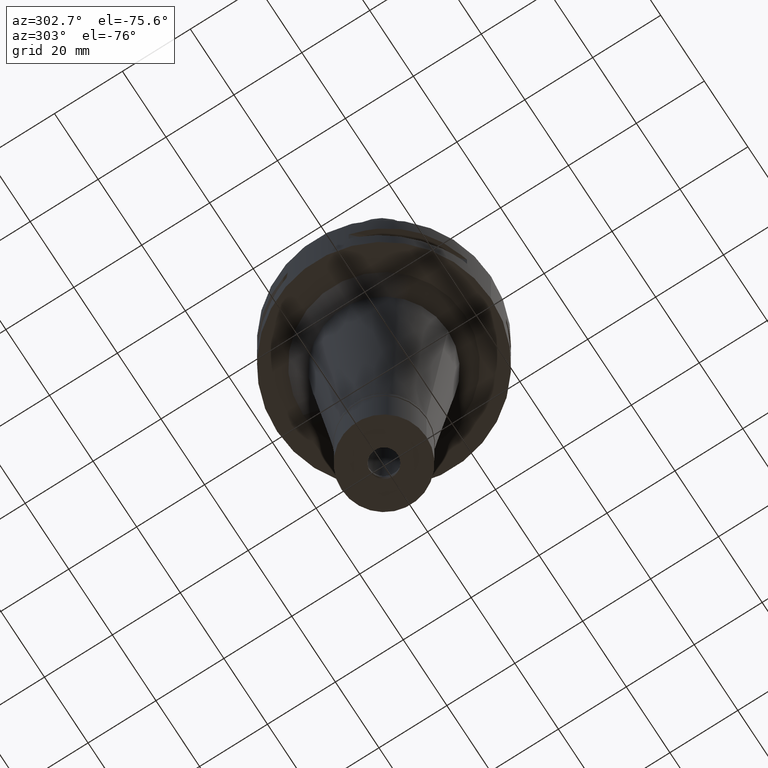
[diagram: clean part render]
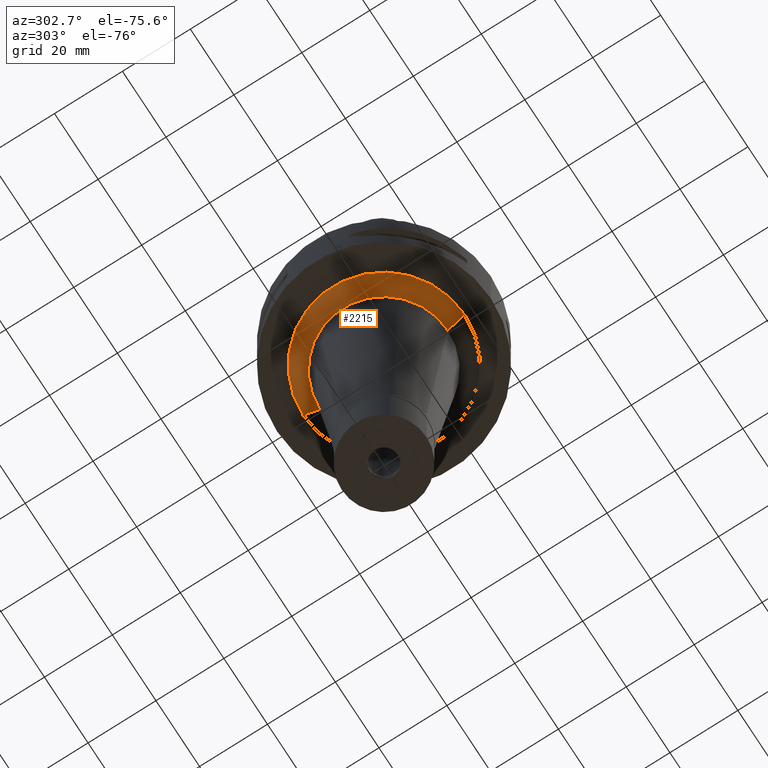
[diagram: same view with one face highlighted and labeled with its STEP entity id]
A machine part, auxiliary view. The second image highlights one B-rep face of the part: STEP entity #2215.
In plain terms, the highlighted conical surface has half-angle 45 deg.
Its self-contained STEP definition (entity closure, byte-faithful):
#77 = CARTESIAN_POINT ( 'NONE',  ( 0.0000000000000000000, 23.77293717480999646, -22.00000000000000000 ) ) ;
#346 = VERTEX_POINT ( 'NONE', #3609 ) ;
#811 = DIRECTION ( 'NONE',  ( 0.0000000000000000000, -1.000000000000000000, 0.0000000000000000000 ) ) ;
#815 = DIRECTION ( 'NONE',  ( 0.0000000000000000000, 0.0000000000000000000, 1.000000000000000000 ) ) ;
#875 = CIRCLE ( 'NONE', #1797, 23.77293717480999646 ) ;
#1042 = CIRCLE ( 'NONE', #3951, 18.77293717481000002 ) ;
#1156 = ORIENTED_EDGE ( 'NONE', *, *, #3165, .F. ) ;
#1339 = VERTEX_POINT ( 'NONE', #4884 ) ;
#1564 = VECTOR ( 'NONE', #4009, 1000.000000000000000 ) ;
#1604 = DIRECTION ( 'NONE',  ( 0.0000000000000000000, 0.0000000000000000000, -1.000000000000000000 ) ) ;
#1797 = AXIS2_PLACEMENT_3D ( 'NONE', #2385, #1604, #811 ) ;
#1859 = CARTESIAN_POINT ( 'NONE',  ( 0.0000000000000000000, 0.0000000000000000000, -27.00000000000000000 ) ) ;
#1873 = VECTOR ( 'NONE', #3934, 1000.000000000000000 ) ;
#1880 = VERTEX_POINT ( 'NONE', #2061 ) ;
#1914 = DIRECTION ( 'NONE',  ( 0.0000000000000000000, 0.0000000000000000000, -1.000000000000000000 ) ) ;
#1942 = ORIENTED_EDGE ( 'NONE', *, *, #4820, .T. ) ;
#2061 = CARTESIAN_POINT ( 'NONE',  ( 0.0000000000000000000, 23.77293717480999646, -22.00000000000000000 ) ) ;
#2215 = ADVANCED_FACE ( 'NONE', ( #4759 ), #2443, .T. ) ;
#2385 = CARTESIAN_POINT ( 'NONE',  ( 0.0000000000000000000, 0.0000000000000000000, -22.00000000000000000 ) ) ;
#2443 = CONICAL_SURFACE ( 'NONE', #5002, 21.27293717481000002, 0.7853981633972997312 ) ;
#2600 = EDGE_CURVE ( 'NONE', #346, #1339, #1042, .T. ) ;
#2692 = CARTESIAN_POINT ( 'NONE',  ( 0.0000000000000000000, -23.77293717480999646, -22.00000000000000000 ) ) ;
#2699 = DIRECTION ( 'NONE',  ( 0.0000000000000000000, -1.000000000000000000, 0.0000000000000000000 ) ) ;
#2952 = ORIENTED_EDGE ( 'NONE', *, *, #2600, .F. ) ;
#3042 = ORIENTED_EDGE ( 'NONE', *, *, #5000, .T. ) ;
#3165 = EDGE_CURVE ( 'NONE', #4481, #346, #3859, .T. ) ;
#3604 = DIRECTION ( 'NONE',  ( 0.0000000000000000000, 1.000000000000000000, 0.0000000000000000000 ) ) ;
#3609 = CARTESIAN_POINT ( 'NONE',  ( 0.0000000000000000000, -18.77293717481000002, -27.00000000000000000 ) ) ;
#3649 = LINE ( 'NONE', #77, #1564 ) ;
#3859 = LINE ( 'NONE', #2692, #1873 ) ;
#3934 = DIRECTION ( 'NONE',  ( 0.0000000000000000000, 0.7071067811867980391, -0.7071067811862969954 ) ) ;
#3951 = AXIS2_PLACEMENT_3D ( 'NONE', #1859, #1914, #2699 ) ;
#4009 = DIRECTION ( 'NONE',  ( 0.0000000000000000000, -0.7071067811867980391, -0.7071067811862969954 ) ) ;
#4374 = CARTESIAN_POINT ( 'NONE',  ( 0.0000000000000000000, 0.0000000000000000000, -24.50000000000000000 ) ) ;
#4386 = EDGE_LOOP ( 'NONE', ( #2952, #1156, #3042, #1942 ) ) ;
#4455 = CARTESIAN_POINT ( 'NONE',  ( 0.0000000000000000000, -23.77293717480999646, -22.00000000000000000 ) ) ;
#4481 = VERTEX_POINT ( 'NONE', #4455 ) ;
#4759 = FACE_OUTER_BOUND ( 'NONE', #4386, .T. ) ;
#4820 = EDGE_CURVE ( 'NONE', #1880, #1339, #3649, .T. ) ;
#4884 = CARTESIAN_POINT ( 'NONE',  ( 0.0000000000000000000, 18.77293717481000002, -27.00000000000000000 ) ) ;
#5000 = EDGE_CURVE ( 'NONE', #4481, #1880, #875, .T. ) ;
#5002 = AXIS2_PLACEMENT_3D ( 'NONE', #4374, #815, #3604 ) ;